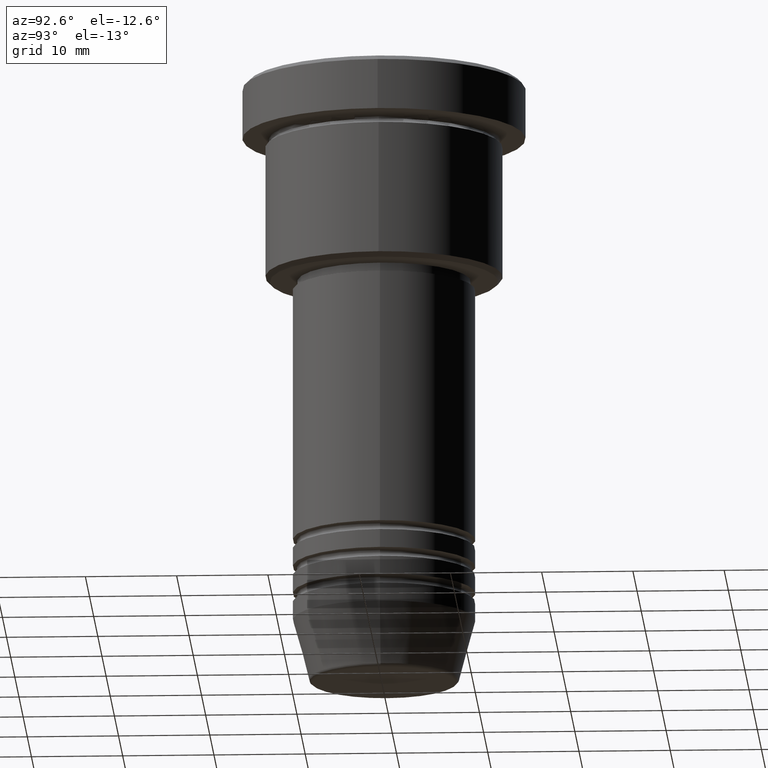
[diagram: clean part render]
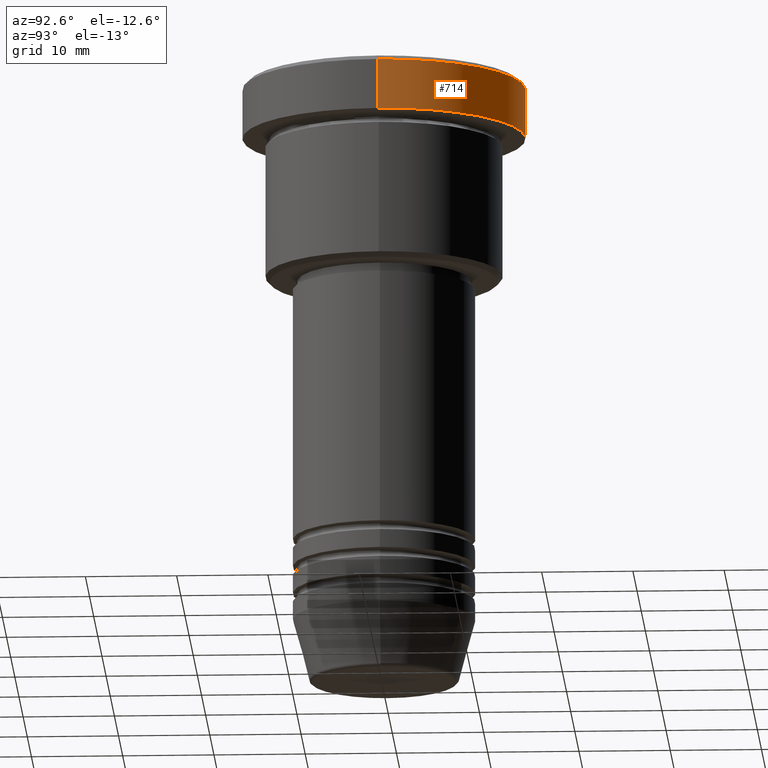
[diagram: same view with one face highlighted and labeled with its STEP entity id]
A machine part, auxiliary view. The second image highlights one B-rep face of the part: STEP entity #714.
In plain terms, the highlighted cylindrical surface (partial cylindrical patch) has radius 15.5 mm, axis along (-0, -0, 1).
Its self-contained STEP definition (entity closure, byte-faithful):
#10 = LINE ( 'NONE', #900, #928 ) ;
#39 = CARTESIAN_POINT ( 'NONE',  ( -15.50000000000000000, 1.898202538678397557E-15, -5.999999999999995559 ) ) ;
#42 = ORIENTED_EDGE ( 'NONE', *, *, #866, .T. ) ;
#71 = ORIENTED_EDGE ( 'NONE', *, *, #278, .F. ) ;
#91 = VECTOR ( 'NONE', #776, 1000.000000000000000 ) ;
#102 = DIRECTION ( 'NONE',  ( 0.000000000000000000, 0.000000000000000000, -1.000000000000000000 ) ) ;
#103 = VERTEX_POINT ( 'NONE', #39 ) ;
#131 = ORIENTED_EDGE ( 'NONE', *, *, #904, .T. ) ;
#217 = FACE_OUTER_BOUND ( 'NONE', #489, .T. ) ;
#244 = AXIS2_PLACEMENT_3D ( 'NONE', #1090, #102, #998 ) ;
#278 = EDGE_CURVE ( 'NONE', #322, #951, #10, .T. ) ;
#311 = DIRECTION ( 'NONE',  ( -0.000000000000000000, -0.000000000000000000, 1.000000000000000000 ) ) ;
#316 = CARTESIAN_POINT ( 'NONE',  ( 0.000000000000000000, 0.000000000000000000, -5.999999999999995559 ) ) ;
#322 = VERTEX_POINT ( 'NONE', #646 ) ;
#367 = EDGE_CURVE ( 'NONE', #322, #103, #968, .T. ) ;
#402 = CARTESIAN_POINT ( 'NONE',  ( 15.50000000000000000, 0.000000000000000000, -0.5000000000000057732 ) ) ;
#489 = EDGE_LOOP ( 'NONE', ( #689, #42, #131, #71 ) ) ;
#505 = LINE ( 'NONE', #865, #91 ) ;
#569 = DIRECTION ( 'NONE',  ( 1.000000000000000000, 0.000000000000000000, 0.000000000000000000 ) ) ;
#574 = CARTESIAN_POINT ( 'NONE',  ( 0.000000000000000000, 0.000000000000000000, 0.000000000000000000 ) ) ;
#583 = AXIS2_PLACEMENT_3D ( 'NONE', #316, #855, #569 ) ;
#619 = CIRCLE ( 'NONE', #244, 15.50000000000000000 ) ;
#646 = CARTESIAN_POINT ( 'NONE',  ( 15.50000000000000000, 0.000000000000000000, -5.999999999999995559 ) ) ;
#689 = ORIENTED_EDGE ( 'NONE', *, *, #367, .T. ) ;
#699 = AXIS2_PLACEMENT_3D ( 'NONE', #574, #311, #1022 ) ;
#714 = ADVANCED_FACE ( 'NONE', ( #217 ), #1033, .T. ) ;
#776 = DIRECTION ( 'NONE',  ( -0.000000000000000000, -0.000000000000000000, 1.000000000000000000 ) ) ;
#827 = DIRECTION ( 'NONE',  ( -0.000000000000000000, -0.000000000000000000, 1.000000000000000000 ) ) ;
#846 = VERTEX_POINT ( 'NONE', #955 ) ;
#855 = DIRECTION ( 'NONE',  ( -0.000000000000000000, -0.000000000000000000, 1.000000000000000000 ) ) ;
#865 = CARTESIAN_POINT ( 'NONE',  ( -15.50000000000000000, 1.898202538678397557E-15, 0.000000000000000000 ) ) ;
#866 = EDGE_CURVE ( 'NONE', #103, #846, #505, .T. ) ;
#900 = CARTESIAN_POINT ( 'NONE',  ( 15.50000000000000000, 0.000000000000000000, 0.000000000000000000 ) ) ;
#904 = EDGE_CURVE ( 'NONE', #846, #951, #619, .T. ) ;
#928 = VECTOR ( 'NONE', #827, 1000.000000000000000 ) ;
#951 = VERTEX_POINT ( 'NONE', #402 ) ;
#955 = CARTESIAN_POINT ( 'NONE',  ( -15.50000000000000000, 1.898202538678397557E-15, -0.5000000000000057732 ) ) ;
#968 = CIRCLE ( 'NONE', #583, 15.50000000000000000 ) ;
#998 = DIRECTION ( 'NONE',  ( 1.000000000000000000, 0.000000000000000000, 0.000000000000000000 ) ) ;
#1022 = DIRECTION ( 'NONE',  ( 1.000000000000000000, 0.000000000000000000, 0.000000000000000000 ) ) ;
#1033 = CYLINDRICAL_SURFACE ( 'NONE', #699, 15.50000000000000000 ) ;
#1090 = CARTESIAN_POINT ( 'NONE',  ( 0.000000000000000000, 0.000000000000000000, -0.5000000000000057732 ) ) ;